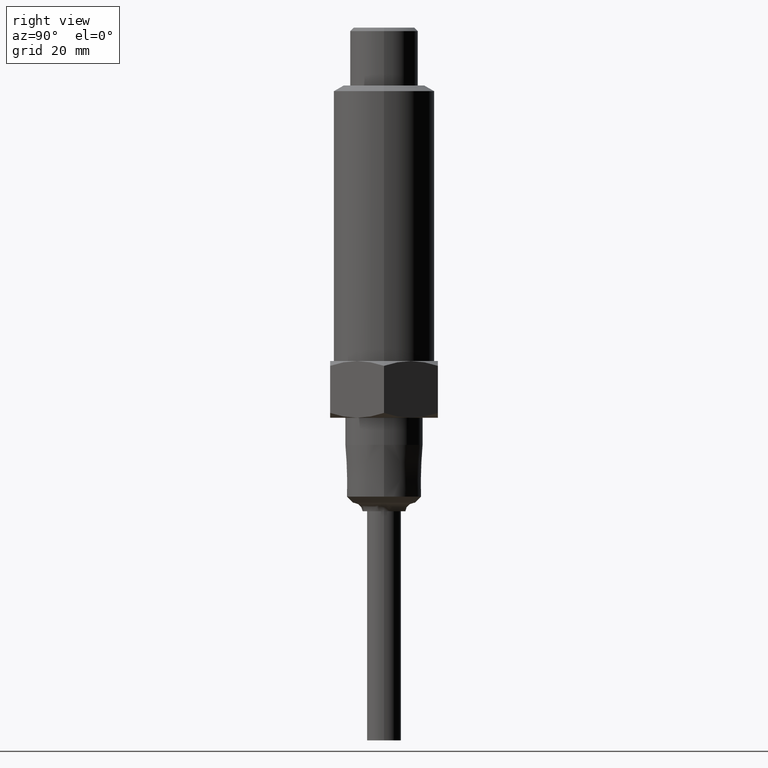
[diagram: clean part render]
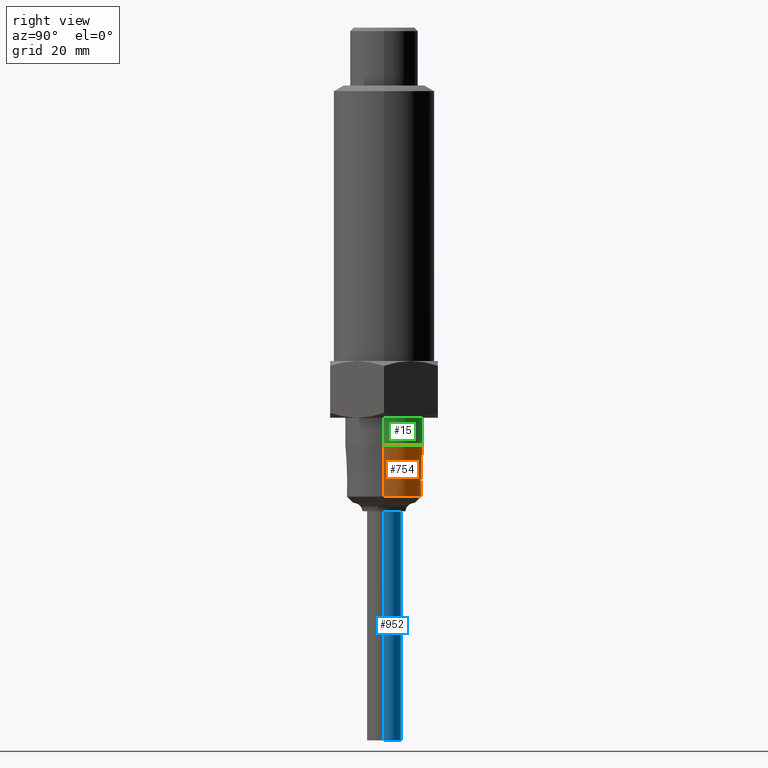
[diagram: same view with three faces highlighted in distinct colors, each labeled with its STEP entity id]
A machine part, right view with three faces highlighted in distinct colors.
Their STEP definitions:

[orange] entity #754 — the highlighted conical surface has half-angle 1.783 deg.
#5 = CIRCLE ( 'NONE', #1312, 0.2699999999999999623 ) ;
#117 = DIRECTION ( 'NONE',  ( -0.03112001307459754534, 3.811102440122966698E-18, -0.9995156550981265653 ) ) ;
#119 = CARTESIAN_POINT ( 'NONE',  ( 1.155767648861452738E-17, 0.000000000000000000, -3.256853834819490423 ) ) ;
#134 = DIRECTION ( 'NONE',  ( -0.03112001307459754534, -0.000000000000000000, 0.9995156550981265653 ) ) ;
#141 = DIRECTION ( 'NONE',  ( 1.000000000000000000, 0.000000000000000000, 0.000000000000000000 ) ) ;
#178 = CIRCLE ( 'NONE', #913, 0.2588087636055498852 ) ;
#188 = CARTESIAN_POINT ( 'NONE',  ( 0.000000000000000000, 0.000000000000000000, -2.897412598425197050 ) ) ;
#208 = VERTEX_POINT ( 'NONE', #388 ) ;
#228 = LINE ( 'NONE', #1414, #841 ) ;
#313 = CARTESIAN_POINT ( 'NONE',  ( -0.2588087636063541308, 1.620910056975852462E-17, -3.256853834819490423 ) ) ;
#388 = CARTESIAN_POINT ( 'NONE',  ( 0.2588087636063541308, -4.250099944077077791E-17, -3.256853834819490423 ) ) ;
#405 = CARTESIAN_POINT ( 'NONE',  ( -0.2699999999999762590, 2.066591473561231306E-17, -2.897412598425284092 ) ) ;
#499 = EDGE_CURVE ( 'NONE', #1326, #519, #5, .T. ) ;
#519 = VERTEX_POINT ( 'NONE', #405 ) ;
#573 = DIRECTION ( 'NONE',  ( 0.000000000000000000, 0.000000000000000000, 1.000000000000000000 ) ) ;
#597 = CARTESIAN_POINT ( 'NONE',  ( 0.2699999999999762590, -8.266365894243779220E-18, -2.897412598425284980 ) ) ;
#629 = EDGE_CURVE ( 'NONE', #1425, #519, #683, .T. ) ;
#683 = LINE ( 'NONE', #1172, #1505 ) ;
#708 = ORIENTED_EDGE ( 'NONE', *, *, #629, .T. ) ;
#754 = ADVANCED_FACE ( 'NONE', ( #964 ), #982, .T. ) ;
#841 = VECTOR ( 'NONE', #117, 39.37007874015747433 ) ;
#866 = EDGE_LOOP ( 'NONE', ( #1363, #1445, #708, #970 ) ) ;
#913 = AXIS2_PLACEMENT_3D ( 'NONE', #119, #573, #1043 ) ;
#964 = FACE_OUTER_BOUND ( 'NONE', #866, .T. ) ;
#967 = EDGE_CURVE ( 'NONE', #208, #1425, #178, .T. ) ;
#970 = ORIENTED_EDGE ( 'NONE', *, *, #499, .F. ) ;
#982 = CONICAL_SURFACE ( 'NONE', #1453, 0.2699999999999050382, 0.03112503832123173983 ) ;
#1043 = DIRECTION ( 'NONE',  ( -1.000000000000000000, 0.000000000000000000, 0.000000000000000000 ) ) ;
#1147 = DIRECTION ( 'NONE',  ( 0.000000000000000000, 0.000000000000000000, 1.000000000000000000 ) ) ;
#1172 = CARTESIAN_POINT ( 'NONE',  ( -612.0299555392574575, 0.000000000000000000, 19645.66929133858503 ) ) ;
#1262 = DIRECTION ( 'NONE',  ( 1.000000000000000000, 0.000000000000000000, 0.000000000000000000 ) ) ;
#1304 = EDGE_CURVE ( 'NONE', #1326, #208, #228, .T. ) ;
#1312 = AXIS2_PLACEMENT_3D ( 'NONE', #188, #1147, #1262 ) ;
#1326 = VERTEX_POINT ( 'NONE', #597 ) ;
#1333 = DIRECTION ( 'NONE',  ( 0.000000000000000000, 0.000000000000000000, 1.000000000000000000 ) ) ;
#1363 = ORIENTED_EDGE ( 'NONE', *, *, #1304, .T. ) ;
#1414 = CARTESIAN_POINT ( 'NONE',  ( 612.0299555392574575, -7.495205260334486008E-14, 19645.66929133858503 ) ) ;
#1425 = VERTEX_POINT ( 'NONE', #313 ) ;
#1445 = ORIENTED_EDGE ( 'NONE', *, *, #967, .T. ) ;
#1451 = CARTESIAN_POINT ( 'NONE',  ( 1.707404996040164512E-17, 0.000000000000000000, -2.897412598425546992 ) ) ;
#1453 = AXIS2_PLACEMENT_3D ( 'NONE', #1451, #1333, #141 ) ;
#1505 = VECTOR ( 'NONE', #134, 39.37007874015747433 ) ;

[blue] entity #952 — the highlighted cylindrical surface (edge-blend (fillet) strip) has radius 3 mm, axis along (0, 0, -1).
#7 = CARTESIAN_POINT ( 'NONE',  ( 0.1181102362204724532, 1.446433227339393765E-17, -3.358267716535433323 ) ) ;
#31 = AXIS2_PLACEMENT_3D ( 'NONE', #875, #261, #720 ) ;
#47 = CARTESIAN_POINT ( 'NONE',  ( -0.1181102362204724532, -1.446433227339393765E-17, -3.358267716535433323 ) ) ;
#231 = DIRECTION ( 'NONE',  ( -1.000000000000000000, 0.000000000000000000, 0.000000000000000000 ) ) ;
#261 = DIRECTION ( 'NONE',  ( -0.000000000000000000, -0.000000000000000000, 1.000000000000000000 ) ) ;
#318 = CARTESIAN_POINT ( 'NONE',  ( 0.000000000000000000, 0.000000000000000000, -3.358267716535433323 ) ) ;
#352 = ORIENTED_EDGE ( 'NONE', *, *, #527, .F. ) ;
#358 = ORIENTED_EDGE ( 'NONE', *, *, #950, .T. ) ;
#360 = CARTESIAN_POINT ( 'NONE',  ( 0.000000000000000000, 0.000000000000000000, -3.964566929133858775 ) ) ;
#397 = CARTESIAN_POINT ( 'NONE',  ( -0.1181102362204724532, -1.446433227339393765E-17, -4.948818897637795367 ) ) ;
#409 = ORIENTED_EDGE ( 'NONE', *, *, #545, .T. ) ;
#471 = LINE ( 'NONE', #557, #1161 ) ;
#486 = EDGE_CURVE ( 'NONE', #732, #1529, #656, .T. ) ;
#527 = EDGE_CURVE ( 'NONE', #1247, #751, #634, .T. ) ;
#545 = EDGE_CURVE ( 'NONE', #1529, #751, #1003, .T. ) ;
#557 = CARTESIAN_POINT ( 'NONE',  ( 0.1181102362204724532, 1.446433227339393765E-17, -3.964566929133858775 ) ) ;
#634 = CIRCLE ( 'NONE', #1254, 0.1181102362204724532 ) ;
#656 = CIRCLE ( 'NONE', #31, 0.1181102362204724532 ) ;
#658 = AXIS2_PLACEMENT_3D ( 'NONE', #360, #826, #231 ) ;
#720 = DIRECTION ( 'NONE',  ( -1.000000000000000000, 0.000000000000000000, 0.000000000000000000 ) ) ;
#732 = VERTEX_POINT ( 'NONE', #978 ) ;
#751 = VERTEX_POINT ( 'NONE', #47 ) ;
#826 = DIRECTION ( 'NONE',  ( 0.000000000000000000, 0.000000000000000000, -1.000000000000000000 ) ) ;
#875 = CARTESIAN_POINT ( 'NONE',  ( 0.000000000000000000, 0.000000000000000000, -4.948818897637795367 ) ) ;
#893 = CARTESIAN_POINT ( 'NONE',  ( -0.1181102362204724532, 0.000000000000000000, -3.964566929133858775 ) ) ;
#950 = EDGE_CURVE ( 'NONE', #1247, #732, #471, .T. ) ;
#952 = ADVANCED_FACE ( 'NONE', ( #1050 ), #1067, .T. ) ;
#978 = CARTESIAN_POINT ( 'NONE',  ( 0.1181102362204724532, 1.446433227339393765E-17, -4.948818897637795367 ) ) ;
#1003 = LINE ( 'NONE', #893, #1281 ) ;
#1035 = DIRECTION ( 'NONE',  ( 0.000000000000000000, 0.000000000000000000, -1.000000000000000000 ) ) ;
#1050 = FACE_OUTER_BOUND ( 'NONE', #1132, .T. ) ;
#1067 = CYLINDRICAL_SURFACE ( 'NONE', #658, 0.1181102362204724532 ) ;
#1123 = DIRECTION ( 'NONE',  ( -0.000000000000000000, -0.000000000000000000, 1.000000000000000000 ) ) ;
#1132 = EDGE_LOOP ( 'NONE', ( #409, #352, #358, #1260 ) ) ;
#1161 = VECTOR ( 'NONE', #1035, 39.37007874015748143 ) ;
#1247 = VERTEX_POINT ( 'NONE', #7 ) ;
#1254 = AXIS2_PLACEMENT_3D ( 'NONE', #318, #1348, #1469 ) ;
#1260 = ORIENTED_EDGE ( 'NONE', *, *, #486, .T. ) ;
#1281 = VECTOR ( 'NONE', #1123, 39.37007874015748143 ) ;
#1348 = DIRECTION ( 'NONE',  ( -0.000000000000000000, -0.000000000000000000, 1.000000000000000000 ) ) ;
#1469 = DIRECTION ( 'NONE',  ( -1.000000000000000000, 0.000000000000000000, 0.000000000000000000 ) ) ;
#1529 = VERTEX_POINT ( 'NONE', #397 ) ;

[green] entity #15 — the highlighted cylindrical surface (partial cylindrical patch) has radius 6.858 mm, axis along (0, 0, 1).
#5 = CIRCLE ( 'NONE', #1312, 0.2699999999999999623 ) ;
#15 = ADVANCED_FACE ( 'NONE', ( #524 ), #306, .T. ) ;
#62 = CARTESIAN_POINT ( 'NONE',  ( 0.000000000000000000, 0.000000000000000000, -2.708661417322834719 ) ) ;
#68 = LINE ( 'NONE', #528, #631 ) ;
#84 = CARTESIAN_POINT ( 'NONE',  ( 0.000000000000000000, 0.000000000000000000, -2.803037007874015885 ) ) ;
#97 = CARTESIAN_POINT ( 'NONE',  ( -0.2699999999999999623, 3.306546357697853733E-17, -2.708661417322834719 ) ) ;
#125 = VERTEX_POINT ( 'NONE', #97 ) ;
#179 = DIRECTION ( 'NONE',  ( -0.000000000000000000, -0.000000000000000000, -1.000000000000000000 ) ) ;
#188 = CARTESIAN_POINT ( 'NONE',  ( 0.000000000000000000, 0.000000000000000000, -2.897412598425197050 ) ) ;
#189 = VERTEX_POINT ( 'NONE', #601 ) ;
#278 = ORIENTED_EDGE ( 'NONE', *, *, #599, .T. ) ;
#281 = EDGE_CURVE ( 'NONE', #519, #125, #1392, .T. ) ;
#303 = CIRCLE ( 'NONE', #1034, 0.2699999999999999623 ) ;
#306 = CYLINDRICAL_SURFACE ( 'NONE', #1155, 0.2699999999999999623 ) ;
#320 = EDGE_LOOP ( 'NONE', ( #278, #778, #1416, #1284 ) ) ;
#336 = DIRECTION ( 'NONE',  ( 0.000000000000000000, 0.000000000000000000, 1.000000000000000000 ) ) ;
#405 = CARTESIAN_POINT ( 'NONE',  ( -0.2699999999999762590, 2.066591473561231306E-17, -2.897412598425284092 ) ) ;
#499 = EDGE_CURVE ( 'NONE', #1326, #519, #5, .T. ) ;
#518 = DIRECTION ( 'NONE',  ( 1.000000000000000000, 0.000000000000000000, 0.000000000000000000 ) ) ;
#519 = VERTEX_POINT ( 'NONE', #405 ) ;
#524 = FACE_OUTER_BOUND ( 'NONE', #320, .T. ) ;
#528 = CARTESIAN_POINT ( 'NONE',  ( 0.2699999999999999623, 0.000000000000000000, -2.803037007874015885 ) ) ;
#597 = CARTESIAN_POINT ( 'NONE',  ( 0.2699999999999762590, -8.266365894243779220E-18, -2.897412598425284980 ) ) ;
#599 = EDGE_CURVE ( 'NONE', #189, #1326, #68, .T. ) ;
#601 = CARTESIAN_POINT ( 'NONE',  ( 0.2699999999999999623, 0.000000000000000000, -2.708661417322834719 ) ) ;
#631 = VECTOR ( 'NONE', #179, 39.37007874015748143 ) ;
#766 = DIRECTION ( 'NONE',  ( 1.000000000000000000, 0.000000000000000000, 0.000000000000000000 ) ) ;
#778 = ORIENTED_EDGE ( 'NONE', *, *, #499, .T. ) ;
#828 = CARTESIAN_POINT ( 'NONE',  ( -0.2699999999999999623, 3.306546357697853733E-17, -2.803037007874015885 ) ) ;
#902 = DIRECTION ( 'NONE',  ( 0.000000000000000000, 0.000000000000000000, 1.000000000000000000 ) ) ;
#1028 = VECTOR ( 'NONE', #336, 39.37007874015748143 ) ;
#1034 = AXIS2_PLACEMENT_3D ( 'NONE', #62, #1223, #518 ) ;
#1147 = DIRECTION ( 'NONE',  ( 0.000000000000000000, 0.000000000000000000, 1.000000000000000000 ) ) ;
#1155 = AXIS2_PLACEMENT_3D ( 'NONE', #84, #902, #766 ) ;
#1223 = DIRECTION ( 'NONE',  ( 0.000000000000000000, 0.000000000000000000, 1.000000000000000000 ) ) ;
#1262 = DIRECTION ( 'NONE',  ( 1.000000000000000000, 0.000000000000000000, 0.000000000000000000 ) ) ;
#1284 = ORIENTED_EDGE ( 'NONE', *, *, #1490, .F. ) ;
#1312 = AXIS2_PLACEMENT_3D ( 'NONE', #188, #1147, #1262 ) ;
#1326 = VERTEX_POINT ( 'NONE', #597 ) ;
#1392 = LINE ( 'NONE', #828, #1028 ) ;
#1416 = ORIENTED_EDGE ( 'NONE', *, *, #281, .T. ) ;
#1490 = EDGE_CURVE ( 'NONE', #189, #125, #303, .T. ) ;